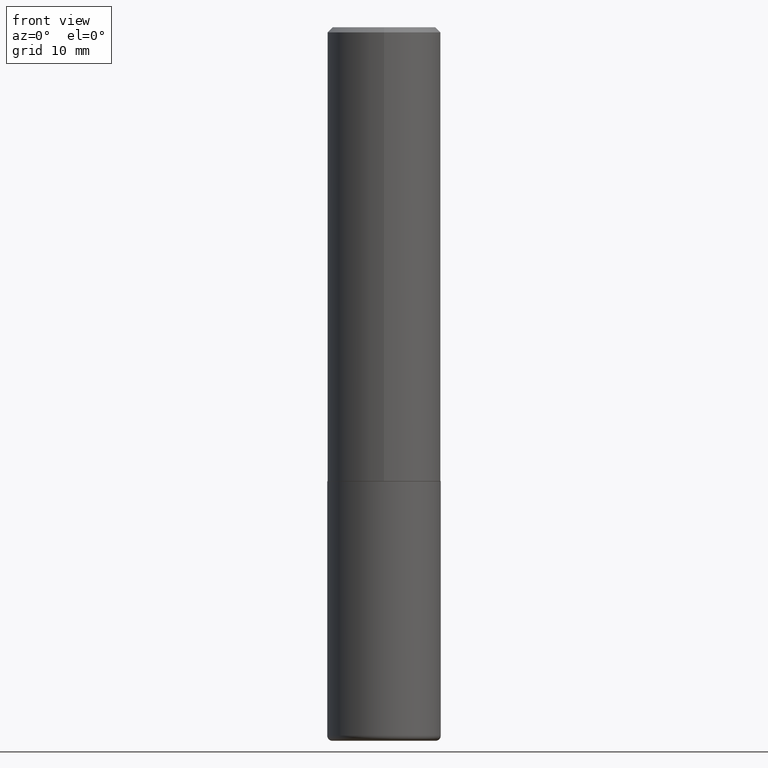
[diagram: clean part render]
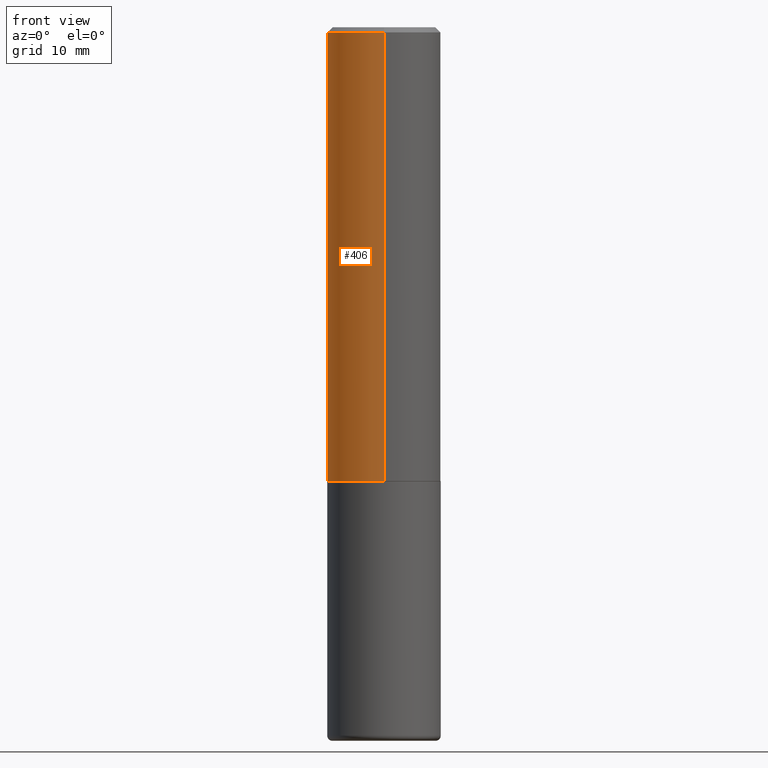
[diagram: same view with one face highlighted and labeled with its STEP entity id]
A machine part, front view. The second image highlights one B-rep face of the part: STEP entity #406.
In plain terms, the highlighted cylindrical surface (partial cylindrical patch) has radius 5.5563 mm, axis along (-0, 0, 1).
Its self-contained STEP definition (entity closure, byte-faithful):
#8 = EDGE_CURVE ( 'NONE', #330, #227, #75, .T. ) ;
#11 = CARTESIAN_POINT ( 'NONE',  ( -1.500733937012521740E-15, -0.2187500000000000555, -0.01999999999999928571 ) ) ;
#31 = EDGE_CURVE ( 'NONE', #159, #33, #53, .T. ) ;
#33 = VERTEX_POINT ( 'NONE', #214 ) ;
#38 = ORIENTED_EDGE ( 'NONE', *, *, #113, .T. ) ;
#41 = VECTOR ( 'NONE', #206, 39.37007874015748143 ) ;
#44 = CARTESIAN_POINT ( 'NONE',  ( -1.527523085743829033E-15, -0.2187500000000062728, -1.748999999999999000 ) ) ;
#50 = CIRCLE ( 'NONE', #109, 0.2187500000000001665 ) ;
#53 = LINE ( 'NONE', #151, #416 ) ;
#56 = CIRCLE ( 'NONE', #117, 0.2187500000000000000 ) ;
#75 = LINE ( 'NONE', #138, #41 ) ;
#96 = EDGE_LOOP ( 'NONE', ( #172, #38, #363, #337 ) ) ;
#109 = AXIS2_PLACEMENT_3D ( 'NONE', #385, #247, #382 ) ;
#113 = EDGE_CURVE ( 'NONE', #159, #330, #50, .T. ) ;
#117 = AXIS2_PLACEMENT_3D ( 'NONE', #256, #359, #226 ) ;
#121 = EDGE_CURVE ( 'NONE', #33, #227, #56, .T. ) ;
#138 = CARTESIAN_POINT ( 'NONE',  ( -1.527523085743871237E-15, -0.2187500000000000833, 7.638372411654415133E-16 ) ) ;
#151 = CARTESIAN_POINT ( 'NONE',  ( 1.554312234475219551E-15, 0.2187500000000000833, -7.638372411654415133E-16 ) ) ;
#159 = VERTEX_POINT ( 'NONE', #230 ) ;
#171 = FACE_OUTER_BOUND ( 'NONE', #96, .T. ) ;
#172 = ORIENTED_EDGE ( 'NONE', *, *, #31, .F. ) ;
#186 = DIRECTION ( 'NONE',  ( -2.445227161221343579E-29, 3.491827388184874306E-15, 1.000000000000000000 ) ) ;
#206 = DIRECTION ( 'NONE',  ( -2.445227161221343579E-29, 3.491827388184874306E-15, 1.000000000000000000 ) ) ;
#214 = CARTESIAN_POINT ( 'NONE',  ( 1.527523085743871040E-15, 0.2187499999999999167, -0.02000000000000081574 ) ) ;
#226 = DIRECTION ( 'NONE',  ( -6.982962677686265133E-15, -1.000000000000000000, 3.492862791899308071E-15 ) ) ;
#227 = VERTEX_POINT ( 'NONE', #11 ) ;
#230 = CARTESIAN_POINT ( 'NONE',  ( 1.554312234475241442E-15, 0.2187499999999940603, -1.749000000000000554 ) ) ;
#240 = AXIS2_PLACEMENT_3D ( 'NONE', #410, #244, #241 ) ;
#241 = DIRECTION ( 'NONE',  ( -6.982962677686265922E-15, -1.000000000000000000, 3.491827388184874306E-15 ) ) ;
#244 = DIRECTION ( 'NONE',  ( -2.445227161221343579E-29, 3.491827388184874306E-15, 1.000000000000000000 ) ) ;
#247 = DIRECTION ( 'NONE',  ( -2.445227161221343579E-29, 3.491827388184874306E-15, 1.000000000000000000 ) ) ;
#256 = CARTESIAN_POINT ( 'NONE',  ( 4.890454322442699524E-31, -6.983654776369765967E-17, -0.02000000000000005246 ) ) ;
#278 = CYLINDRICAL_SURFACE ( 'NONE', #240, 0.2187500000000000833 ) ;
#330 = VERTEX_POINT ( 'NONE', #44 ) ;
#337 = ORIENTED_EDGE ( 'NONE', *, *, #121, .F. ) ;
#359 = DIRECTION ( 'NONE',  ( -2.445227161221343579E-29, 3.491827388184874306E-15, 1.000000000000000000 ) ) ;
#363 = ORIENTED_EDGE ( 'NONE', *, *, #8, .T. ) ;
#382 = DIRECTION ( 'NONE',  ( -6.982962677686265133E-15, -1.000000000000000000, 3.746534391310986401E-15 ) ) ;
#385 = CARTESIAN_POINT ( 'NONE',  ( 4.276702304976129224E-29, -6.107206101935344019E-15, -1.748999999999999888 ) ) ;
#406 = ADVANCED_FACE ( 'NONE', ( #171 ), #278, .T. ) ;
#410 = CARTESIAN_POINT ( 'NONE',  ( 0.000000000000000000, 0.000000000000000000, 0.000000000000000000 ) ) ;
#416 = VECTOR ( 'NONE', #186, 39.37007874015748143 ) ;